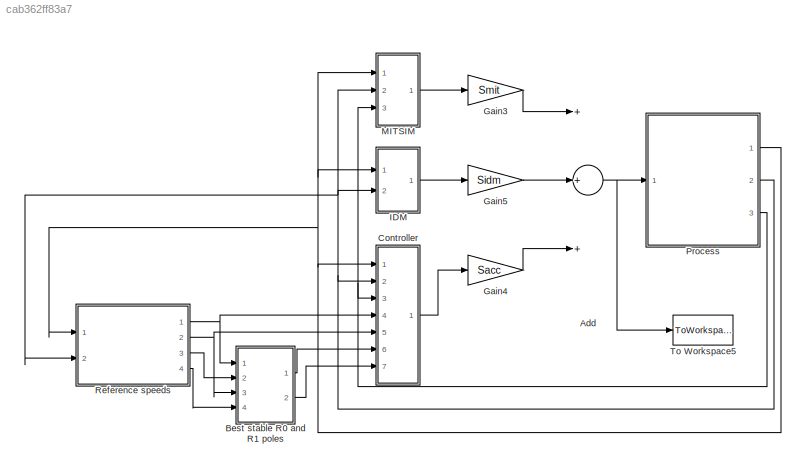
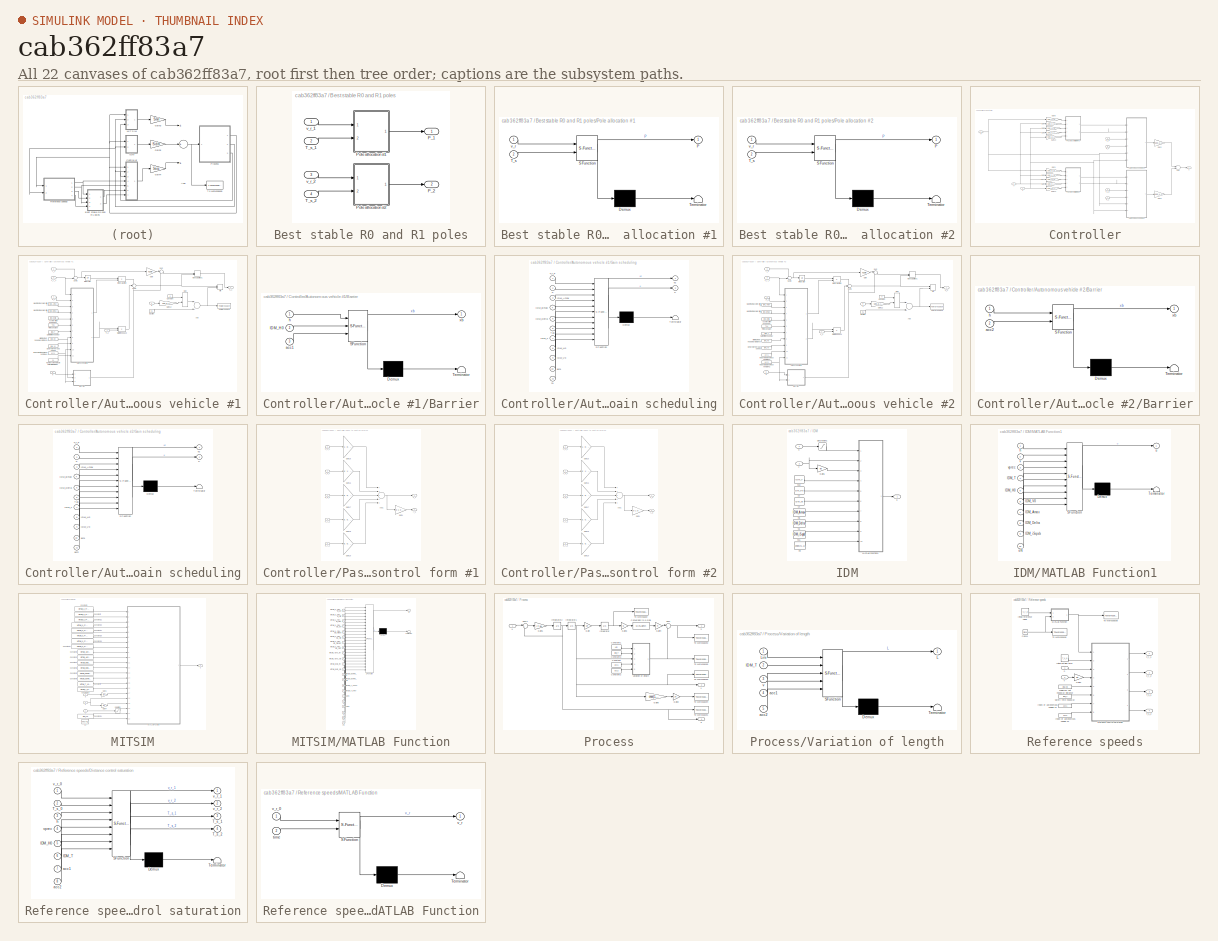
[diagram: thumbnail index - all 22 canvases of the model, root first then tree order]
MODEL slx_cab362ff83a7
KIND model
CONFIG AbsTol = auto
CONFIG EnableMultiTasking = on
CONFIG FixedStep = auto
CONFIG MaxStep = maxstepsize
CONFIG MinStep = auto
CONFIG RelTol = 1e-3
CONFIG SampleTimeConstraint = Unconstrained
CONFIG Solver = VariableStepAuto
CONFIG SolverName = VariableStepAuto
CONFIG StartTime = 0.0
CONFIG StopTime = tfinal
BLOCK [Sum] Add
  InputSameDT = off
  Inputs = +++
  OutDataTypeStr = Inherit: Inherit via internal rule
  Ports = [3, 1]
  SaturateOnIntegerOverflow = off
BLOCK [SubSystem] Best stable R0 and R1 poles
  Ports = [4, 2]
  RequestExecContextInheritance = off
BLOCK [Outport] Best stable R0 and R1 poles/P_1
  IconDisplay = Port number
BLOCK [Outport] Best stable R0 and R1 poles/P_2
  IconDisplay = Port number
  Port = 2
BLOCK [SubSystem] Best stable R0 and R1 poles/Pole allocation #1
  ErrorFcn = Stateflow.Translate.translate
  PermitHierarchicalResolution = ExplicitOnly
  Ports = [2, 1]
  RequestExecContextInheritance = off
  SFBlockType = MATLAB Function
  TreatAsAtomicUnit = on
BLOCK [Demux] Best stable R0 and R1 poles/Pole allocation #1/ Demux 
  Outputs = 1
  Ports = [1, 1]
BLOCK [S-Function] Best stable R0 and R1 poles/Pole allocation #1/ SFunction 
  EnableBusSupport = on
  FunctionName = sf_sfun
  PortCounts = [2 2]
  Ports = [2, 2]
  SFcnIsStateOwnerBlock = off
  SFunctionDeploymentMode = off
  Tag = Stateflow S-Function A_Justo_SCHFV_slx_Track 4
BLOCK [Terminator] Best stable R0 and R1 poles/Pole allocation #1/ Terminator 
BLOCK [Outport] Best stable R0 and R1 poles/Pole allocation #1/P
  IconDisplay = Port number
BLOCK [Inport] Best stable R0 and R1 poles/Pole allocation #1/T_s
  IconDisplay = Port number
  Port = 2
BLOCK [Inport] Best stable R0 and R1 poles/Pole allocation #1/v_r
  IconDisplay = Port number
BLOCK [SubSystem] Best stable R0 and R1 poles/Pole allocation #2
  ErrorFcn = Stateflow.Translate.translate
  PermitHierarchicalResolution = ExplicitOnly
  Ports = [2, 1]
  RequestExecContextInheritance = off
  SFBlockType = MATLAB Function
  TreatAsAtomicUnit = on
BLOCK [Demux] Best stable R0 and R1 poles/Pole allocation #2/ Demux 
  Outputs = 1
  Ports = [1, 1]
BLOCK [S-Function] Best stable R0 and R1 poles/Pole allocation #2/ SFunction 
  EnableBusSupport = on
  FunctionName = sf_sfun
  PortCounts = [2 2]
  Ports = [2, 2]
  SFcnIsStateOwnerBlock = off
  SFunctionDeploymentMode = off
  Tag = Stateflow S-Function A_Justo_SCHFV_slx_Track 8
BLOCK [Terminator] Best stable R0 and R1 poles/Pole allocation #2/ Terminator 
BLOCK [Outport] Best stable R0 and R1 poles/Pole allocation #2/P
  IconDisplay = Port number
BLOCK [Inport] Best stable R0 and R1 poles/Pole allocation #2/T_s
  IconDisplay = Port number
  Port = 2
BLOCK [Inport] Best stable R0 and R1 poles/Pole allocation #2/v_r
  IconDisplay = Port number
BLOCK [Inport] Best stable R0 and R1 poles/T_s_1
  IconDisplay = Port number
  Port = 2
BLOCK [Inport] Best stable R0 and R1 poles/T_s_2
  IconDisplay = Port number
  Port = 4
BLOCK [Inport] Best stable R0 and R1 poles/v_r_1
  IconDisplay = Port number
BLOCK [Inport] Best stable R0 and R1 poles/v_r_2
  IconDisplay = Port number
  Port = 3
BLOCK [SubSystem] Controller
  Ports = [7, 1]
  RequestExecContextInheritance = off
BLOCK [Sum] Controller/Add
  InputSameDT = off
  OutDataTypeStr = Inherit: Inherit via internal rule
  Ports = [2, 1]
  SaturateOnIntegerOverflow = off
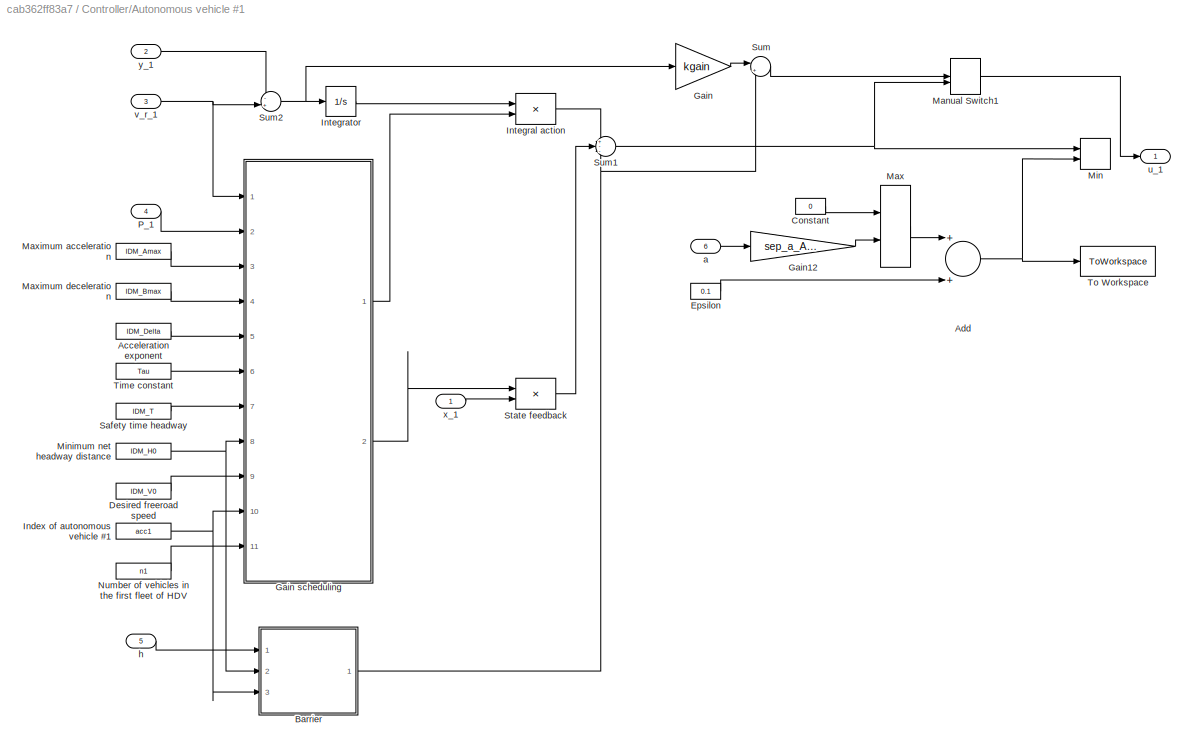
BLOCK [SubSystem] Controller/Autonomous vehicle #1
  Ports = [6, 1]
  RequestExecContextInheritance = off
BLOCK [Constant] Controller/Autonomous vehicle #1/Acceleration exponent
  Value = IDM_Delta
BLOCK [Sum] Controller/Autonomous vehicle #1/Add
  InputSameDT = off
  OutDataTypeStr = Inherit: Inherit via internal rule
  Ports = [2, 1]
  SaturateOnIntegerOverflow = off
BLOCK [SubSystem] Controller/Autonomous vehicle #1/Barrier
  ErrorFcn = Stateflow.Translate.translate
  PermitHierarchicalResolution = ExplicitOnly
  Ports = [3, 1]
  RequestExecContextInheritance = off
  SFBlockType = MATLAB Function
  TreatAsAtomicUnit = on
BLOCK [Demux] Controller/Autonomous vehicle #1/Barrier/ Demux 
  Outputs = 1
  Ports = [1, 1]
BLOCK [S-Function] Controller/Autonomous vehicle #1/Barrier/ SFunction 
  EnableBusSupport = on
  FunctionName = sf_sfun
  PortCounts = [3 2]
  Ports = [3, 2]
  SFcnIsStateOwnerBlock = off
  SFunctionDeploymentMode = off
  Tag = Stateflow S-Function A_Justo_SCHFV_slx_Track 9
BLOCK [Terminator] Controller/Autonomous vehicle #1/Barrier/ Terminator 
BLOCK [Inport] Controller/Autonomous vehicle #1/Barrier/IDM_H0
  IconDisplay = Port number
  Port = 2
BLOCK [Inport] Controller/Autonomous vehicle #1/Barrier/acc1
  IconDisplay = Port number
  Port = 3
BLOCK [Inport] Controller/Autonomous vehicle #1/Barrier/h
  IconDisplay = Port number
BLOCK [Outport] Controller/Autonomous vehicle #1/Barrier/xb
  IconDisplay = Port number
BLOCK [Constant] Controller/Autonomous vehicle #1/Constant
  Value = 0
BLOCK [Constant] Controller/Autonomous vehicle #1/Desired freeroad speed
  Value = IDM_V0
BLOCK [Constant] Controller/Autonomous vehicle #1/Epsilon
  Value = 0.1
BLOCK [Gain] Controller/Autonomous vehicle #1/Gain
  Gain = kgain
  OutDataTypeStr = Inherit: Inherit via internal rule
  ParamDataTypeStr = Inherit: Inherit via internal rule
  SaturateOnIntegerOverflow = off
BLOCK [SubSystem] Controller/Autonomous vehicle #1/Gain scheduling
  ErrorFcn = Stateflow.Translate.translate
  PermitHierarchicalResolution = ExplicitOnly
  Ports = [11, 2]
  RequestExecContextInheritance = off
  SFBlockType = MATLAB Function
  TreatAsAtomicUnit = on
BLOCK [Demux] Controller/Autonomous vehicle #1/Gain scheduling/ Demux 
  Outputs = 1
  Ports = [1, 1]
BLOCK [S-Function] Controller/Autonomous vehicle #1/Gain scheduling/ SFunction 
  EnableBusSupport = on
  FunctionName = sf_sfun
  PortCounts = [11 3]
  Ports = [11, 3]
  SFcnIsStateOwnerBlock = off
  SFunctionDeploymentMode = off
  Tag = Stateflow S-Function A_Justo_SCHFV_slx_Track 11
BLOCK [Terminator] Controller/Autonomous vehicle #1/Gain scheduling/ Terminator 
BLOCK [Inport] Controller/Autonomous vehicle #1/Gain scheduling/IDM_Amax
  IconDisplay = Port number
  Port = 3
BLOCK [Inport] Controller/Autonomous vehicle #1/Gain scheduling/IDM_Bmax
  IconDisplay = Port number
  Port = 4
BLOCK [Inport] Controller/Autonomous vehicle #1/Gain scheduling/IDM_Delta
  IconDisplay = Port number
  Port = 5
BLOCK [Inport] Controller/Autonomous vehicle #1/Gain scheduling/IDM_H0
  IconDisplay = Port number
  Port = 8
BLOCK [Inport] Controller/Autonomous vehicle #1/Gain scheduling/IDM_T
  IconDisplay = Port number
  Port = 7
BLOCK [Inport] Controller/Autonomous vehicle #1/Gain scheduling/IDM_V0
  IconDisplay = Port number
  Port = 9
BLOCK [Outport] Controller/Autonomous vehicle #1/Gain scheduling/K
  IconDisplay = Port number
  Port = 2
BLOCK [Inport] Controller/Autonomous vehicle #1/Gain scheduling/P
  IconDisplay = Port number
  Port = 2
BLOCK [Inport] Controller/Autonomous vehicle #1/Gain scheduling/Tau
  IconDisplay = Port number
  Port = 6
BLOCK [Inport] Controller/Autonomous vehicle #1/Gain scheduling/acc1
  IconDisplay = Port number
  Port = 10
BLOCK [Outport] Controller/Autonomous vehicle #1/Gain scheduling/kz
  IconDisplay = Port number
BLOCK [Inport] Controller/Autonomous vehicle #1/Gain scheduling/n1
  IconDisplay = Port number
  Port = 11
BLOCK [Inport] Controller/Autonomous vehicle #1/Gain scheduling/v_r_0
  IconDisplay = Port number
BLOCK [Gain] Controller/Autonomous vehicle #1/Gain12
  Gain = sep_a_A_2
  Multiplication = Matrix(K*u)
  OutDataTypeStr = Inherit: Inherit via internal rule
  ParamDataTypeStr = Inherit: Inherit via internal rule
  SaturateOnIntegerOverflow = off
BLOCK [Constant] Controller/Autonomous vehicle #1/Index of autonomous vehicle #1
  Value = acc1
BLOCK [Product] Controller/Autonomous vehicle #1/Integral action
  InputSameDT = off
  Multiplication = Matrix(*)
  OutDataTypeStr = Inherit: Inherit via internal rule
  Ports = [2, 1]
  RndMeth = Floor
  SaturateOnIntegerOverflow = off
BLOCK [Integrator] Controller/Autonomous vehicle #1/Integrator
  Ports = [1, 1]
BLOCK [ManualSwitch] Controller/Autonomous vehicle #1/Manual Switch1
BLOCK [MinMax] Controller/Autonomous vehicle #1/Max
  Function = max
  InputSameDT = off
  Inputs = 2
  Ports = [2, 1]
  SaturateOnIntegerOverflow = off
BLOCK [Constant] Controller/Autonomous vehicle #1/Maximum acceleration
  Value = IDM_Amax
BLOCK [Constant] Controller/Autonomous vehicle #1/Maximum deceleration
  Value = IDM_Bmax
BLOCK [MinMax] Controller/Autonomous vehicle #1/Min
  InputSameDT = off
  Inputs = 2
  Ports = [2, 1]
  SaturateOnIntegerOverflow = off
BLOCK [Constant] Controller/Autonomous vehicle #1/Minimum net headway distance
  Value = IDM_H0
BLOCK [Constant] Controller/Autonomous vehicle #1/Number of vehicles in the first fleet of HDV
  Value = n1
BLOCK [Inport] Controller/Autonomous vehicle #1/P_1
  IconDisplay = Port number
  Port = 4
BLOCK [Constant] Controller/Autonomous vehicle #1/Safety time headway
  Value = IDM_T
BLOCK [Product] Controller/Autonomous vehicle #1/State feedback
  InputSameDT = off
  Multiplication = Matrix(*)
  OutDataTypeStr = Inherit: Inherit via internal rule
  Ports = [2, 1]
  RndMeth = Floor
  SaturateOnIntegerOverflow = off
BLOCK [Sum] Controller/Autonomous vehicle #1/Sum
  IconShape = round
  InputSameDT = off
  Inputs = |+-
  OutDataTypeStr = Inherit: Inherit via internal rule
  Ports = [2, 1]
  SaturateOnIntegerOverflow = off
BLOCK [Sum] Controller/Autonomous vehicle #1/Sum1
  IconShape = round
  InputSameDT = off
  Inputs = +--
  OutDataTypeStr = Inherit: Inherit via internal rule
  Ports = [3, 1]
  SaturateOnIntegerOverflow = off
BLOCK [Sum] Controller/Autonomous vehicle #1/Sum2
  IconShape = round
  InputSameDT = off
  Inputs = -+|
  OutDataTypeStr = Inherit: Inherit via internal rule
  Ports = [2, 1]
  SaturateOnIntegerOverflow = off
BLOCK [Constant] Controller/Autonomous vehicle #1/Time constant
  Value = Tau
BLOCK [ToWorkspace] Controller/Autonomous vehicle #1/To Workspace
  FixptAsFi = on
  MaxDataPoints = inf
  Ports = [1]
  SampleTime = -1
  VariableName = sims_amax1
BLOCK [Inport] Controller/Autonomous vehicle #1/a
  IconDisplay = Port number
  Port = 6
BLOCK [Inport] Controller/Autonomous vehicle #1/h
  IconDisplay = Port number
  Port = 5
BLOCK [Outport] Controller/Autonomous vehicle #1/u_1
  IconDisplay = Port number
BLOCK [Inport] Controller/Autonomous vehicle #1/v_r_1
  IconDisplay = Port number
  Port = 3
BLOCK [Inport] Controller/Autonomous vehicle #1/x_1
  IconDisplay = Port number
BLOCK [Inport] Controller/Autonomous vehicle #1/y_1
  IconDisplay = Port number
  Port = 2
BLOCK [SubSystem] Controller/Autonomous vehicle #2
  Ports = [6, 1]
  RequestExecContextInheritance = off
BLOCK [Constant] Controller/Autonomous vehicle #2/Acceleration exponent
  Value = IDM_Delta
BLOCK [Sum] Controller/Autonomous vehicle #2/Add
  InputSameDT = off
  OutDataTypeStr = Inherit: Inherit via internal rule
  Ports = [2, 1]
  SaturateOnIntegerOverflow = off
BLOCK [SubSystem] Controller/Autonomous vehicle #2/Barrier
  ErrorFcn = Stateflow.Translate.translate
  PermitHierarchicalResolution = ExplicitOnly
  Ports = [2, 1]
  RequestExecContextInheritance = off
  SFBlockType = MATLAB Function
  TreatAsAtomicUnit = on
BLOCK [Demux] Controller/Autonomous vehicle #2/Barrier/ Demux 
  Outputs = 1
  Ports = [1, 1]
BLOCK [S-Function] Controller/Autonomous vehicle #2/Barrier/ SFunction 
  EnableBusSupport = on
  FunctionName = sf_sfun
  PortCounts = [2 2]
  Ports = [2, 2]
  SFcnIsStateOwnerBlock = off
  SFunctionDeploymentMode = off
  Tag = Stateflow S-Function A_Justo_SCHFV_slx_Track 10
BLOCK [Terminator] Controller/Autonomous vehicle #2/Barrier/ Terminator 
BLOCK [Inport] Controller/Autonomous vehicle #2/Barrier/acc2
  IconDisplay = Port number
  Port = 2
BLOCK [Inport] Controller/Autonomous vehicle #2/Barrier/h
  IconDisplay = Port number
BLOCK [Outport] Controller/Autonomous vehicle #2/Barrier/xb
  IconDisplay = Port number
BLOCK [Constant] Controller/Autonomous vehicle #2/Constant
  Value = 0
BLOCK [Constant] Controller/Autonomous vehicle #2/Desired freeroad speed
  Value = IDM_V0
BLOCK [Constant] Controller/Autonomous vehicle #2/Epsilon
  Value = 0.1
BLOCK [Gain] Controller/Autonomous vehicle #2/Gain
  Gain = kgain
  OutDataTypeStr = Inherit: Inherit via internal rule
  ParamDataTypeStr = Inherit: Inherit via internal rule
  SaturateOnIntegerOverflow = off
BLOCK [SubSystem] Controller/Autonomous vehicle #2/Gain scheduling
  ErrorFcn = Stateflow.Translate.translate
  PermitHierarchicalResolution = ExplicitOnly
  Ports = [11, 2]
  RequestExecContextInheritance = off
  SFBlockType = MATLAB Function
  TreatAsAtomicUnit = on
BLOCK [Demux] Controller/Autonomous vehicle #2/Gain scheduling/ Demux 
  Outputs = 1
  Ports = [1, 1]
BLOCK [S-Function] Controller/Autonomous vehicle #2/Gain scheduling/ SFunction 
  EnableBusSupport = on
  FunctionName = sf_sfun
  PortCounts = [11 3]
  Ports = [11, 3]
  SFcnIsStateOwnerBlock = off
  SFunctionDeploymentMode = off
  Tag = Stateflow S-Function A_Justo_SCHFV_slx_Track 2
BLOCK [Terminator] Controller/Autonomous vehicle #2/Gain scheduling/ Terminator 
BLOCK [Inport] Controller/Autonomous vehicle #2/Gain scheduling/IDM_Amax
  IconDisplay = Port number
  Port = 3
BLOCK [Inport] Controller/Autonomous vehicle #2/Gain scheduling/IDM_Bmax
  IconDisplay = Port number
  Port = 4
BLOCK [Inport] Controller/Autonomous vehicle #2/Gain scheduling/IDM_Delta
  IconDisplay = Port number
  Port = 5
BLOCK [Inport] Controller/Autonomous vehicle #2/Gain scheduling/IDM_H0
  IconDisplay = Port number
  Port = 8
BLOCK [Inport] Controller/Autonomous vehicle #2/Gain scheduling/IDM_T
  IconDisplay = Port number
  Port = 7
BLOCK [Inport] Controller/Autonomous vehicle #2/Gain scheduling/IDM_V0
  IconDisplay = Port number
  Port = 9
BLOCK [Outport] Controller/Autonomous vehicle #2/Gain scheduling/K
  IconDisplay = Port number
  Port = 2
BLOCK [Inport] Controller/Autonomous vehicle #2/Gain scheduling/P
  IconDisplay = Port number
  Port = 2
BLOCK [Inport] Controller/Autonomous vehicle #2/Gain scheduling/Tau
  IconDisplay = Port number
  Port = 6
BLOCK [Inport] Controller/Autonomous vehicle #2/Gain scheduling/acc1
  IconDisplay = Port number
  Port = 10
BLOCK [Inport] Controller/Autonomous vehicle #2/Gain scheduling/acc2
  IconDisplay = Port number
  Port = 11
BLOCK [Outport] Controller/Autonomous vehicle #2/Gain scheduling/kz
  IconDisplay = Port number
BLOCK [Inport] Controller/Autonomous vehicle #2/Gain scheduling/v_r_0
  IconDisplay = Port number
BLOCK [Gain] Controller/Autonomous vehicle #2/Gain12
  Gain = sep_a_A_1
  Multiplication = Matrix(K*u)
  OutDataTypeStr = Inherit: Inherit via internal rule
  ParamDataTypeStr = Inherit: Inherit via internal rule
  SaturateOnIntegerOverflow = off
BLOCK [Constant] Controller/Autonomous vehicle #2/Index of autonomous vehicle #1
  Value = acc1
BLOCK [Constant] Controller/Autonomous vehicle #2/Index of autonomous vehicle #2
  Value = acc2
BLOCK [Product] Controller/Autonomous vehicle #2/Integral action
  InputSameDT = off
  Multiplication = Matrix(*)
  OutDataTypeStr = Inherit: Inherit via internal rule
  Ports = [2, 1]
  RndMeth = Floor
  SaturateOnIntegerOverflow = off
BLOCK [Integrator] Controller/Autonomous vehicle #2/Integrator
  Ports = [1, 1]
BLOCK [ManualSwitch] Controller/Autonomous vehicle #2/Manual Switch1
BLOCK [MinMax] Controller/Autonomous vehicle #2/Max
  Function = max
  InputSameDT = off
  Inputs = 2
  Ports = [2, 1]
  SaturateOnIntegerOverflow = off
BLOCK [Constant] Controller/Autonomous vehicle #2/Maximum acceleration
  Value = IDM_Amax
BLOCK [Constant] Controller/Autonomous vehicle #2/Maximum deceleration
  Value = IDM_Bmax
BLOCK [MinMax] Controller/Autonomous vehicle #2/Min
  InputSameDT = off
  Inputs = 2
  Ports = [2, 1]
  SaturateOnIntegerOverflow = off
BLOCK [Constant] Controller/Autonomous vehicle #2/Minimum net headway distance
  Value = IDM_H0
BLOCK [Inport] Controller/Autonomous vehicle #2/P_2
  IconDisplay = Port number
  Port = 4
BLOCK [Constant] Controller/Autonomous vehicle #2/Safety time headway
  Value = IDM_T
BLOCK [Product] Controller/Autonomous vehicle #2/State feedback
  InputSameDT = off
  Multiplication = Matrix(*)
  OutDataTypeStr = Inherit: Inherit via internal rule
  Ports = [2, 1]
  RndMeth = Floor
  SaturateOnIntegerOverflow = off
BLOCK [Sum] Controller/Autonomous vehicle #2/Sum
  IconShape = round
  InputSameDT = off
  Inputs = |+-
  OutDataTypeStr = Inherit: Inherit via internal rule
  Ports = [2, 1]
  SaturateOnIntegerOverflow = off
BLOCK [Sum] Controller/Autonomous vehicle #2/Sum1
  IconShape = round
  InputSameDT = off
  Inputs = +--
  OutDataTypeStr = Inherit: Inherit via internal rule
  Ports = [3, 1]
  SaturateOnIntegerOverflow = off
BLOCK [Sum] Controller/Autonomous vehicle #2/Sum2
  IconShape = round
  InputSameDT = off
  Inputs = -+|
  OutDataTypeStr = Inherit: Inherit via internal rule
  Ports = [2, 1]
  SaturateOnIntegerOverflow = off
BLOCK [Constant] Controller/Autonomous vehicle #2/Time constant
  Value = Tau
BLOCK [ToWorkspace] Controller/Autonomous vehicle #2/To Workspace
  FixptAsFi = on
  MaxDataPoints = inf
  Ports = [1]
  SampleTime = -1
  VariableName = sims_amax2
BLOCK [Inport] Controller/Autonomous vehicle #2/a
  IconDisplay = Port number
  Port = 6
BLOCK [Inport] Controller/Autonomous vehicle #2/h
  IconDisplay = Port number
  Port = 5
BLOCK [Outport] Controller/Autonomous vehicle #2/u_2
  IconDisplay = Port number
BLOCK [Inport] Controller/Autonomous vehicle #2/v_r_2
  IconDisplay = Port number
  Port = 3
BLOCK [Inport] Controller/Autonomous vehicle #2/x_2
  IconDisplay = Port number
BLOCK [Inport] Controller/Autonomous vehicle #2/y_2
  IconDisplay = Port number
  Port = 2
BLOCK [Gain] Controller/Gain1
  Gain = sep_h_H_2
  Multiplication = Matrix(K*u)
  OutDataTypeStr = Inherit: Inherit via internal rule
  ParamDataTypeStr = Inherit: Inherit via internal rule
  SaturateOnIntegerOverflow = off
BLOCK [Gain] Controller/Gain10
  Gain = sep_a_A_1
  Multiplication = Matrix(K*u)
  OutDataTypeStr = Inherit: Inherit via internal rule
  ParamDataTypeStr = Inherit: Inherit via internal rule
  SaturateOnIntegerOverflow = off
BLOCK [Gain] Controller/Gain11
  Gain = sep_a_H_2
  Multiplication = Matrix(K*u)
  OutDataTypeStr = Inherit: Inherit via internal rule
  ParamDataTypeStr = Inherit: Inherit via internal rule
  SaturateOnIntegerOverflow = off
BLOCK [Gain] Controller/Gain12
  Gain = sep_a_A_2
  Multiplication = Matrix(K*u)
  OutDataTypeStr = Inherit: Inherit via internal rule
  ParamDataTypeStr = Inherit: Inherit via internal rule
  SaturateOnIntegerOverflow = off
BLOCK [Gain] Controller/Gain2
  Gain = add_u_1
  Multiplication = Matrix(K*u)
  OutDataTypeStr = Inherit: Inherit via internal rule
  ParamDataTypeStr = Inherit: Inherit via internal rule
  SaturateOnIntegerOverflow = off
BLOCK [Gain] Controller/Gain3
  Gain = add_u_2
  Multiplication = Matrix(K*u)
  OutDataTypeStr = Inherit: Inherit via internal rule
  ParamDataTypeStr = Inherit: Inherit via internal rule
  SaturateOnIntegerOverflow = off
BLOCK [Gain] Controller/Gain4
  Gain = sep_v_H_1
  Multiplication = Matrix(K*u)
  OutDataTypeStr = Inherit: Inherit via internal rule
  ParamDataTypeStr = Inherit: Inherit via internal rule
  SaturateOnIntegerOverflow = off
BLOCK [Gain] Controller/Gain5
  Gain = sep_v_A_1
  Multiplication = Matrix(K*u)
  OutDataTypeStr = Inherit: Inherit via internal rule
  ParamDataTypeStr = Inherit: Inherit via internal rule
  SaturateOnIntegerOverflow = off
BLOCK [Gain] Controller/Gain6
  Gain = sep_v_H_2
  Multiplication = Matrix(K*u)
  OutDataTypeStr = Inherit: Inherit via internal rule
  ParamDataTypeStr = Inherit: Inherit via internal rule
  SaturateOnIntegerOverflow = off
BLOCK [Gain] Controller/Gain7
  Gain = sep_v_A_2
  Multiplication = Matrix(K*u)
  OutDataTypeStr = Inherit: Inherit via internal rule
  ParamDataTypeStr = Inherit: Inherit via internal rule
  SaturateOnIntegerOverflow = off
BLOCK [Gain] Controller/Gain8
  Gain = sep_h_H_1
  Multiplication = Matrix(K*u)
  OutDataTypeStr = Inherit: Inherit via internal rule
  ParamDataTypeStr = Inherit: Inherit via internal rule
  SaturateOnIntegerOverflow = off
BLOCK [Gain] Controller/Gain9
  Gain = sep_a_H_1
  Multiplication = Matrix(K*u)
  OutDataTypeStr = Inherit: Inherit via internal rule
  ParamDataTypeStr = Inherit: Inherit via internal rule
  SaturateOnIntegerOverflow = off
BLOCK [Inport] Controller/P_1
  IconDisplay = Port number
  Port = 6
BLOCK [Inport] Controller/P_2
  IconDisplay = Port number
  Port = 7
BLOCK [SubSystem] Controller/Pass to control form #1
  Ports = [5, 2]
  RequestExecContextInheritance = off
BLOCK [Sum] Controller/Pass to control form #1/Add1
  InputSameDT = off
  Inputs = +++++
  OutDataTypeStr = Inherit: Inherit via internal rule
  Ports = [5, 1]
  SaturateOnIntegerOverflow = off
BLOCK [Gain] Controller/Pass to control form #1/Gain1
  Gain = [0 1 0 0 0]
  Multiplication = Matrix(K*u)
  OutDataTypeStr = Inherit: Inherit via internal rule
  ParamDataTypeStr = Inherit: Inherit via internal rule
  SaturateOnIntegerOverflow = off
BLOCK [Gain] Controller/Pass to control form #1/Gain15
  Gain = [1; 0; 0; 0; 0]
  Multiplication = Matrix(K*u)
  OutDataTypeStr = Inherit: Inherit via internal rule
  ParamDataTypeStr = Inherit: Inherit via internal rule
  SaturateOnIntegerOverflow = off
BLOCK [Gain] Controller/Pass to control form #1/Gain16
  Gain = [0; 1; 0; 0; 0]
  Multiplication = Matrix(K*u)
  OutDataTypeStr = Inherit: Inherit via internal rule
  ParamDataTypeStr = Inherit: Inherit via internal rule
  SaturateOnIntegerOverflow = off
BLOCK [Gain] Controller/Pass to control form #1/Gain17
  Gain = [0; 0; 1; 0; 0]
  Multiplication = Matrix(K*u)
  OutDataTypeStr = Inherit: Inherit via internal rule
  ParamDataTypeStr = Inherit: Inherit via internal rule
  SaturateOnIntegerOverflow = off
BLOCK [Gain] Controller/Pass to control form #1/Gain18
  Gain = [0; 0; 0; 1; 0]
  Multiplication = Matrix(K*u)
  OutDataTypeStr = Inherit: Inherit via internal rule
  ParamDataTypeStr = Inherit: Inherit via internal rule
  SaturateOnIntegerOverflow = off
BLOCK [Gain] Controller/Pass to control form #1/Gain19
  Gain = [0; 0; 0; 0; 1]
  Multiplication = Matrix(K*u)
  OutDataTypeStr = Inherit: Inherit via internal rule
  ParamDataTypeStr = Inherit: Inherit via internal rule
  SaturateOnIntegerOverflow = off
BLOCK [Inport] Controller/Pass to control form #1/a_A_1
  IconDisplay = Port number
  Port = 5
BLOCK [Inport] Controller/Pass to control form #1/a_H_1
  IconDisplay = Port number
  Port = 3
BLOCK [Inport] Controller/Pass to control form #1/h_H_1
  IconDisplay = Port number
BLOCK [Inport] Controller/Pass to control form #1/v_A_1
  IconDisplay = Port number
  Port = 4
BLOCK [Inport] Controller/Pass to control form #1/v_H_1
  IconDisplay = Port number
  Port = 2
BLOCK [Outport] Controller/Pass to control form #1/x_1
  IconDisplay = Port number
BLOCK [Outport] Controller/Pass to control form #1/y_1
  IconDisplay = Port number
  Port = 2
BLOCK [SubSystem] Controller/Pass to control form #2
  Ports = [5, 2]
  RequestExecContextInheritance = off
BLOCK [Sum] Controller/Pass to control form #2/Add1
  InputSameDT = off
  Inputs = +++++
  OutDataTypeStr = Inherit: Inherit via internal rule
  Ports = [5, 1]
  SaturateOnIntegerOverflow = off
BLOCK [Gain] Controller/Pass to control form #2/Gain1
  Gain = [0 1 0 0 0]
  Multiplication = Matrix(K*u)
  OutDataTypeStr = Inherit: Inherit via internal rule
  ParamDataTypeStr = Inherit: Inherit via internal rule
  SaturateOnIntegerOverflow = off
BLOCK [Gain] Controller/Pass to control form #2/Gain15
  Gain = [1; 0; 0; 0; 0]
  Multiplication = Matrix(K*u)
  OutDataTypeStr = Inherit: Inherit via internal rule
  ParamDataTypeStr = Inherit: Inherit via internal rule
  SaturateOnIntegerOverflow = off
BLOCK [Gain] Controller/Pass to control form #2/Gain16
  Gain = [0; 1; 0; 0; 0]
  Multiplication = Matrix(K*u)
  OutDataTypeStr = Inherit: Inherit via internal rule
  ParamDataTypeStr = Inherit: Inherit via internal rule
  SaturateOnIntegerOverflow = off
BLOCK [Gain] Controller/Pass to control form #2/Gain17
  Gain = [0; 0; 1; 0; 0]
  Multiplication = Matrix(K*u)
  OutDataTypeStr = Inherit: Inherit via internal rule
  ParamDataTypeStr = Inherit: Inherit via internal rule
  SaturateOnIntegerOverflow = off
BLOCK [Gain] Controller/Pass to control form #2/Gain18
  Gain = [0; 0; 0; 1; 0]
  Multiplication = Matrix(K*u)
  OutDataTypeStr = Inherit: Inherit via internal rule
  ParamDataTypeStr = Inherit: Inherit via internal rule
  SaturateOnIntegerOverflow = off
BLOCK [Gain] Controller/Pass to control form #2/Gain19
  Gain = [0; 0; 0; 0; 1]
  Multiplication = Matrix(K*u)
  OutDataTypeStr = Inherit: Inherit via internal rule
  ParamDataTypeStr = Inherit: Inherit via internal rule
  SaturateOnIntegerOverflow = off
BLOCK [Inport] Controller/Pass to control form #2/a_A_2
  IconDisplay = Port number
  Port = 5
BLOCK [Inport] Controller/Pass to control form #2/a_H_2
  IconDisplay = Port number
  Port = 3
BLOCK [Inport] Controller/Pass to control form #2/h_H_2
  IconDisplay = Port number
BLOCK [Inport] Controller/Pass to control form #2/v_A_2
  IconDisplay = Port number
  Port = 4
BLOCK [Inport] Controller/Pass to control form #2/v_H_2
  IconDisplay = Port number
  Port = 2
BLOCK [Outport] Controller/Pass to control form #2/x_2
  IconDisplay = Port number
BLOCK [Outport] Controller/Pass to control form #2/y_2
  IconDisplay = Port number
  Port = 2
BLOCK [Inport] Controller/a
  IconDisplay = Port number
  Port = 3
BLOCK [Inport] Controller/h
  IconDisplay = Port number
BLOCK [Outport] Controller/u
  IconDisplay = Port number
BLOCK [Inport] Controller/v
  IconDisplay = Port number
  Port = 2
BLOCK [Inport] Controller/v_r_1
  IconDisplay = Port number
  Port = 4
BLOCK [Inport] Controller/v_r_2
  IconDisplay = Port number
  Port = 5
BLOCK [Gain] Gain3
  Gain = Smit
  Multiplication = Matrix(K*u)
  OutDataTypeStr = Inherit: Inherit via internal rule
  ParamDataTypeStr = Inherit: Inherit via internal rule
  SaturateOnIntegerOverflow = off
BLOCK [Gain] Gain4
  Gain = Sacc
  Multiplication = Matrix(K*u)
  OutDataTypeStr = Inherit: Inherit via internal rule
  ParamDataTypeStr = Inherit: Inherit via internal rule
  SaturateOnIntegerOverflow = off
BLOCK [Gain] Gain5
  Gain = Sidm
  Multiplication = Matrix(K*u)
  OutDataTypeStr = Inherit: Inherit via internal rule
  ParamDataTypeStr = Inherit: Inherit via internal rule
  SaturateOnIntegerOverflow = off
BLOCK [SubSystem] IDM
  Ports = [2, 1]
  RequestExecContextInheritance = off
BLOCK [Gain] IDM/Gain1
  Gain = Bv
  Multiplication = Matrix(K*u)
  OutDataTypeStr = Inherit: Inherit via internal rule
  ParamDataTypeStr = Inherit: Inherit via internal rule
  SaturateOnIntegerOverflow = off
BLOCK [SubSystem] IDM/MATLAB Function1
  ErrorFcn = Stateflow.Translate.translate
  PermitHierarchicalResolution = ExplicitOnly
  Ports = [10, 1]
  RequestExecContextInheritance = off
  SFBlockType = MATLAB Function
  TreatAsAtomicUnit = on
BLOCK [Demux] IDM/MATLAB Function1/ Demux 
  Outputs = 1
  Ports = [1, 1]
BLOCK [S-Function] IDM/MATLAB Function1/ SFunction 
  EnableBusSupport = on
  FunctionName = sf_sfun
  PortCounts = [10 2]
  Ports = [10, 2]
  SFcnIsStateOwnerBlock = off
  SFunctionDeploymentMode = off
  Tag = Stateflow S-Function A_Justo_SCHFV_slx_Track 6
BLOCK [Terminator] IDM/MATLAB Function1/ Terminator 
BLOCK [Inport] IDM/MATLAB Function1/IDM_Amax
  IconDisplay = Port number
  Port = 7
BLOCK [Inport] IDM/MATLAB Function1/IDM_Delta
  IconDisplay = Port number
  Port = 8
BLOCK [Inport] IDM/MATLAB Function1/IDM_H0
  IconDisplay = Port number
  Port = 5
BLOCK [Inport] IDM/MATLAB Function1/IDM_T
  IconDisplay = Port number
  Port = 4
BLOCK [Inport] IDM/MATLAB Function1/IDM_V0
  IconDisplay = Port number
  Port = 6
BLOCK [Inport] IDM/MATLAB Function1/IDM_iSqab
  IconDisplay = Port number
  Port = 9
BLOCK [Inport] IDM/MATLAB Function1/h
  IconDisplay = Port number
BLOCK [Inport] IDM/MATLAB Function1/oN
  IconDisplay = Port number
  Port = 10
BLOCK [Outport] IDM/MATLAB Function1/u
  IconDisplay = Port number
BLOCK [Inport] IDM/MATLAB Function1/v
  IconDisplay = Port number
  Port = 2
BLOCK [Inport] IDM/MATLAB Function1/vprec
  IconDisplay = Port number
  Port = 3
BLOCK [Saturate] IDM/Saturation1
  InputPortMap = u0
  LowerLimit = 0.1
  Ports = [1, 1]
  UpperLimit = inf
BLOCK [Inport] IDM/h
  IconDisplay = Port number
BLOCK [Constant] IDM/h10
  Value = IDM_T
BLOCK [Constant] IDM/h11
  Value = IDM_iSqab
BLOCK [Constant] IDM/h7
  Value = IDM_H0
BLOCK [Constant] IDM/h8
  Value = IDM_Amax
BLOCK [Constant] IDM/h9
  Value = ones(N,1)
BLOCK [Outport] IDM/u
  IconDisplay = Port number
BLOCK [Inport] IDM/v
  IconDisplay = Port number
  Port = 2
BLOCK [Constant] IDM/v4
  Value = IDM_V0
BLOCK [Constant] IDM/v5
  Value = IDM_Delta
BLOCK [SubSystem] MITSIM
  Ports = [3, 1]
  RequestExecContextInheritance = off
BLOCK [Constant] MITSIM/Constant1
  Value = MITSIM_a_Free_thr_low
BLOCK [Constant] MITSIM/Constant10
  Value = MITSIM_T_lower
BLOCK [Constant] MITSIM/Constant11
  Value = IDM_V0
BLOCK [Constant] MITSIM/Constant12
  Value = MITSIM_a_Free_thr_high
BLOCK [Constant] MITSIM/Constant13
  Value = MITSIM_a_Free_bra_low
BLOCK [Constant] MITSIM/Constant14
  Value = MITSIM_a_Free_bra_midlow
BLOCK [Constant] MITSIM/Constant15
  Value = MITSIM_a_Free_bra_mid
BLOCK [Constant] MITSIM/Constant16
  Value = MITSIM_a_Free_bra_midhigh
BLOCK [Constant] MITSIM/Constant17
  Value = MITSIM_a_Free_bra_high
BLOCK [Constant] MITSIM/Constant2
  Value = MITSIM_a_Free_thr_mid
BLOCK [Constant] MITSIM/Constant3
  Value = MITSIM_Alpha_thr
BLOCK [Constant] MITSIM/Constant4
  Value = MITSIM_Alpha_bra
BLOCK [Constant] MITSIM/Constant5
  Value = MITSIM_Beta_bra
BLOCK [Constant] MITSIM/Constant6
  Value = MITSIM_Gamma_thr
BLOCK [Constant] MITSIM/Constant7
  Value = MITSIM_Beta_thr
BLOCK [Constant] MITSIM/Constant8
  Value = MITSIM_Gamma_bra
BLOCK [Constant] MITSIM/Constant9
  Value = MITSIM_T_upper
BLOCK [Gain] MITSIM/Gain1
  Gain = Bv
  Multiplication = Matrix(K*u)
  OutDataTypeStr = Inherit: Inherit via internal rule
  ParamDataTypeStr = Inherit: Inherit via internal rule
  SaturateOnIntegerOverflow = off
BLOCK [Gain] MITSIM/Gain4
  Gain = Bv
  Multiplication = Matrix(K*u)
  OutDataTypeStr = Inherit: Inherit via internal rule
  ParamDataTypeStr = Inherit: Inherit via internal rule
  SaturateOnIntegerOverflow = off
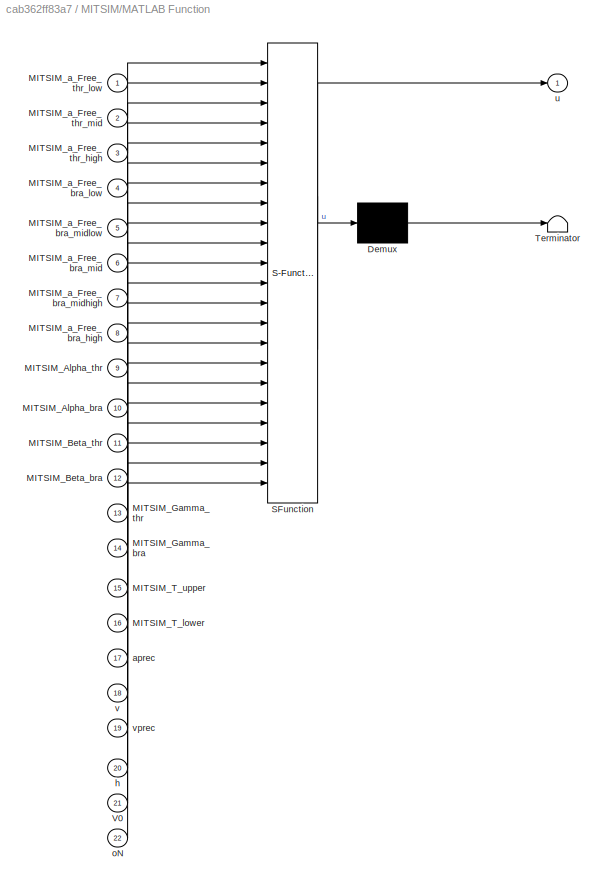
BLOCK [SubSystem] MITSIM/MATLAB Function
  ErrorFcn = Stateflow.Translate.translate
  PermitHierarchicalResolution = ExplicitOnly
  Ports = [22, 1]
  RequestExecContextInheritance = off
  SFBlockType = MATLAB Function
  TreatAsAtomicUnit = on
BLOCK [Demux] MITSIM/MATLAB Function/ Demux 
  Outputs = 1
  Ports = [1, 1]
BLOCK [S-Function] MITSIM/MATLAB Function/ SFunction 
  EnableBusSupport = on
  FunctionName = sf_sfun
  PortCounts = [22 2]
  Ports = [22, 2]
  SFcnIsStateOwnerBlock = off
  SFunctionDeploymentMode = off
  Tag = Stateflow S-Function A_Justo_SCHFV_slx_Track 5
BLOCK [Terminator] MITSIM/MATLAB Function/ Terminator 
BLOCK [Inport] MITSIM/MATLAB Function/MITSIM_Alpha_bra
  IconDisplay = Port number
  Port = 10
BLOCK [Inport] MITSIM/MATLAB Function/MITSIM_Alpha_thr
  IconDisplay = Port number
  Port = 9
BLOCK [Inport] MITSIM/MATLAB Function/MITSIM_Beta_bra
  IconDisplay = Port number
  Port = 12
BLOCK [Inport] MITSIM/MATLAB Function/MITSIM_Beta_thr
  IconDisplay = Port number
  Port = 11
BLOCK [Inport] MITSIM/MATLAB Function/MITSIM_Gamma_bra
  IconDisplay = Port number
  Port = 14
BLOCK [Inport] MITSIM/MATLAB Function/MITSIM_Gamma_thr
  IconDisplay = Port number
  Port = 13
BLOCK [Inport] MITSIM/MATLAB Function/MITSIM_T_lower
  IconDisplay = Port number
  Port = 16
BLOCK [Inport] MITSIM/MATLAB Function/MITSIM_T_upper
  IconDisplay = Port number
  Port = 15
BLOCK [Inport] MITSIM/MATLAB Function/MITSIM_a_Free_bra_high
  IconDisplay = Port number
  Port = 8
BLOCK [Inport] MITSIM/MATLAB Function/MITSIM_a_Free_bra_low
  IconDisplay = Port number
  Port = 4
BLOCK [Inport] MITSIM/MATLAB Function/MITSIM_a_Free_bra_mid
  IconDisplay = Port number
  Port = 6
BLOCK [Inport] MITSIM/MATLAB Function/MITSIM_a_Free_bra_midhigh
  IconDisplay = Port number
  Port = 7
BLOCK [Inport] MITSIM/MATLAB Function/MITSIM_a_Free_bra_midlow
  IconDisplay = Port number
  Port = 5
BLOCK [Inport] MITSIM/MATLAB Function/MITSIM_a_Free_thr_high
  IconDisplay = Port number
  Port = 3
BLOCK [Inport] MITSIM/MATLAB Function/MITSIM_a_Free_thr_low
  IconDisplay = Port number
BLOCK [Inport] MITSIM/MATLAB Function/MITSIM_a_Free_thr_mid
  IconDisplay = Port number
  Port = 2
BLOCK [Inport] MITSIM/MATLAB Function/V0
  IconDisplay = Port number
  Port = 21
BLOCK [Inport] MITSIM/MATLAB Function/aprec
  IconDisplay = Port number
  Port = 17
BLOCK [Inport] MITSIM/MATLAB Function/h
  IconDisplay = Port number
  Port = 20
BLOCK [Inport] MITSIM/MATLAB Function/oN
  IconDisplay = Port number
  Port = 22
BLOCK [Outport] MITSIM/MATLAB Function/u
  IconDisplay = Port number
BLOCK [Inport] MITSIM/MATLAB Function/v
  IconDisplay = Port number
  Port = 18
BLOCK [Inport] MITSIM/MATLAB Function/vprec
  IconDisplay = Port number
  Port = 19
BLOCK [Saturate] MITSIM/Saturation
  InputPortMap = u0
  LowerLimit = 0.1
  Ports = [1, 1]
  UpperLimit = inf
BLOCK [Inport] MITSIM/a
  IconDisplay = Port number
  Port = 3
BLOCK [Inport] MITSIM/h
  IconDisplay = Port number
BLOCK [Constant] MITSIM/h3
  Value = ones(N,1)
BLOCK [Outport] MITSIM/u
  IconDisplay = Port number
BLOCK [Inport] MITSIM/v
  IconDisplay = Port number
  Port = 2
BLOCK [SubSystem] Process
  Ports = [1, 3]
  RequestExecContextInheritance = off
BLOCK [Constant] Process/Constant
  Value = acc1
BLOCK [Constant] Process/Constant1
  Value = Lini
BLOCK [Constant] Process/Constant2
  Value = acc2
BLOCK [Constant] Process/Constant3
  Value = IDM_T
BLOCK [MATLABFcn] Process/Conversion to 0-2*pi1
  MATLABFcn = wrapTo2Pi(u)
  Ports = [1, 1]
BLOCK [Gain] Process/Gain
  Gain = 1/R
  OutDataTypeStr = Inherit: Inherit via internal rule
  ParamDataTypeStr = Inherit: Inherit via internal rule
  SaturateOnIntegerOverflow = off
BLOCK [Gain] Process/Gain1
  Gain = iTau
  Multiplication = Matrix(K*u)
  OutDataTypeStr = Inherit: Inherit via internal rule
  ParamDataTypeStr = Inherit: Inherit via internal rule
  SaturateOnIntegerOverflow = off
BLOCK [Gain] Process/Gain2
  Gain = 1/N
  OutDataTypeStr = Inherit: Inherit via internal rule
  ParamDataTypeStr = Inherit: Inherit via internal rule
  SaturateOnIntegerOverflow = off
BLOCK [Gain] Process/Gain3
  Gain = B
  Multiplication = Matrix(K*u)
  OutDataTypeStr = Inherit: Inherit via internal rule
  ParamDataTypeStr = Inherit: Inherit via internal rule
  SaturateOnIntegerOverflow = off
BLOCK [Gain] Process/Gain4
  Gain = R
  OutDataTypeStr = Inherit: Inherit via internal rule
  ParamDataTypeStr = Inherit: Inherit via internal rule
  SaturateOnIntegerOverflow = off
BLOCK [Gain] Process/Gain5
  Gain = ones(1,N)
  Multiplication = Matrix(K*u)
  OutDataTypeStr = Inherit: Inherit via internal rule
  ParamDataTypeStr = Inherit: Inherit via internal rule
  SaturateOnIntegerOverflow = off
BLOCK [Integrator] Process/Integrator
  InitialCondition = thini
  Ports = [1, 1]
  WrapState = on
  WrappedStateLowerValue = 0
  WrappedStateUpperValue = 2*pi
BLOCK [Integrator] Process/Integrator1
  InitialCondition = vini
  LimitOutput = on
  LowerSaturationLimit = 0
  Ports = [1, 1]
  UpperSaturationLimit = +inf
  WrappedStateLowerValue = 0
  WrappedStateUpperValue = 2*pi
BLOCK [Integrator] Process/Integrator2
  InitialCondition = aini
  Ports = [1, 1]
  UpperSaturationLimit = 1
  WrappedStateLowerValue = 0
  WrappedStateUpperValue = 2*pi
BLOCK [Sum] Process/Sum
  IconShape = round
  InputSameDT = off
  Inputs = |+-
  OutDataTypeStr = Inherit: Inherit via internal rule
  Ports = [2, 1]
  SaturateOnIntegerOverflow = off
BLOCK [Sum] Process/Sum1
  IconShape = round
  InputSameDT = off
  Inputs = |+-
  OutDataTypeStr = Inherit: Inherit via internal rule
  Ports = [2, 1]
  SaturateOnIntegerOverflow = off
BLOCK [ToWorkspace] Process/To Workspace
  FixptAsFi = on
  MaxDataPoints = inf
  Ports = [1]
  SampleTime = -1
  VariableName = sims_th
BLOCK [ToWorkspace] Process/To Workspace1
  FixptAsFi = on
  MaxDataPoints = inf
  Ports = [1]
  SampleTime = -1
  VariableName = sims_a
BLOCK [ToWorkspace] Process/To Workspace2
  FixptAsFi = on
  MaxDataPoints = inf
  Ports = [1]
  SampleTime = -1
  VariableName = sims_h
BLOCK [ToWorkspace] Process/To Workspace3
  FixptAsFi = on
  MaxDataPoints = inf
  Ports = [1]
  SampleTime = -1
  VariableName = sims_v
BLOCK [ToWorkspace] Process/To Workspace4
  FixptAsFi = on
  MaxDataPoints = inf
  Ports = [1]
  SampleTime = -1
  VariableName = sims_vav
BLOCK [ToWorkspace] Process/To Workspace5
  FixptAsFi = on
  MaxDataPoints = inf
  Ports = [1]
  SampleTime = -1
  VariableName = sims_L
BLOCK [SubSystem] Process/Variation of length
  ErrorFcn = Stateflow.Translate.translate
  PermitHierarchicalResolution = ExplicitOnly
  Ports = [5, 1]
  RequestExecContextInheritance = off
  SFBlockType = MATLAB Function
  TreatAsAtomicUnit = on
BLOCK [Demux] Process/Variation of length/ Demux 
  Outputs = 1
  Ports = [1, 1]
BLOCK [S-Function] Process/Variation of length/ SFunction 
  EnableBusSupport = on
  FunctionName = sf_sfun
  PortCounts = [5 2]
  Ports = [5, 2]
  SFcnIsStateOwnerBlock = off
  SFunctionDeploymentMode = off
  Tag = Stateflow S-Function A_Justo_SCHFV_slx_Track 3
BLOCK [Terminator] Process/Variation of length/ Terminator 
BLOCK [Inport] Process/Variation of length/IDM_T
  IconDisplay = Port number
  Port = 2
BLOCK [Outport] Process/Variation of length/L
  IconDisplay = Port number
BLOCK [Inport] Process/Variation of length/Lini
  IconDisplay = Port number
BLOCK [Inport] Process/Variation of length/acc1
  IconDisplay = Port number
  Port = 4
BLOCK [Inport] Process/Variation of length/acc2
  IconDisplay = Port number
  Port = 5
BLOCK [Inport] Process/Variation of length/v
  IconDisplay = Port number
  Port = 3
BLOCK [Outport] Process/a
  IconDisplay = Port number
  Port = 3
BLOCK [Outport] Process/h
  IconDisplay = Port number
BLOCK [Inport] Process/u
  IconDisplay = Port number
BLOCK [Outport] Process/v
  IconDisplay = Port number
  Port = 2
BLOCK [SubSystem] Reference speeds
  Ports = [2, 4]
  RequestExecContextInheritance = off
BLOCK [Clock] Reference speeds/Clock1
BLOCK [SubSystem] Reference speeds/Distance control saturation
  ErrorFcn = Stateflow.Translate.translate
  PermitHierarchicalResolution = ExplicitOnly
  Ports = [8, 4]
  RequestExecContextInheritance = off
  SFBlockType = MATLAB Function
  TreatAsAtomicUnit = on
BLOCK [Demux] Reference speeds/Distance control saturation/ Demux 
  Outputs = 1
  Ports = [1, 1]
BLOCK [S-Function] Reference speeds/Distance control saturation/ SFunction 
  EnableBusSupport = on
  FunctionName = sf_sfun
  PortCounts = [8 5]
  Ports = [8, 5]
  SFcnIsStateOwnerBlock = off
  SFunctionDeploymentMode = off
  Tag = Stateflow S-Function A_Justo_SCHFV_slx_Track 7
BLOCK [Terminator] Reference speeds/Distance control saturation/ Terminator 
BLOCK [Inport] Reference speeds/Distance control saturation/IDM_H0
  IconDisplay = Port number
  Port = 5
BLOCK [Inport] Reference speeds/Distance control saturation/IDM_T
  IconDisplay = Port number
  Port = 6
BLOCK [Inport] Reference speeds/Distance control saturation/T_s_0
  IconDisplay = Port number
  Port = 2
BLOCK [Outport] Reference speeds/Distance control saturation/T_s_1
  IconDisplay = Port number
  Port = 3
BLOCK [Outport] Reference speeds/Distance control saturation/T_s_2
  IconDisplay = Port number
  Port = 4
BLOCK [Inport] Reference speeds/Distance control saturation/acc1
  IconDisplay = Port number
  Port = 7
BLOCK [Inport] Reference speeds/Distance control saturation/acc2
  IconDisplay = Port number
  Port = 8
BLOCK [Inport] Reference speeds/Distance control saturation/h
  IconDisplay = Port number
  Port = 3
BLOCK [Inport] Reference speeds/Distance control saturation/v_r_0
  IconDisplay = Port number
BLOCK [Outport] Reference speeds/Distance control saturation/v_r_1
  IconDisplay = Port number
BLOCK [Outport] Reference speeds/Distance control saturation/v_r_2
  IconDisplay = Port number
  Port = 2
BLOCK [Inport] Reference speeds/Distance control saturation/vprec
  IconDisplay = Port number
  Port = 4
BLOCK [Gain] Reference speeds/Gain1
  Gain = Bv
  Multiplication = Matrix(K*u)
  OutDataTypeStr = Inherit: Inherit via internal rule
  ParamDataTypeStr = Inherit: Inherit via internal rule
  SaturateOnIntegerOverflow = off
BLOCK [Constant] Reference speeds/Index of autonomous vehicle #1
  Value = acc1
BLOCK [Constant] Reference speeds/Index of autonomous vehicle #2
  Value = acc2
BLOCK [Constant] Reference speeds/Initial reference value
  Value = v_r_0
BLOCK [Constant] Reference speeds/Initial settling time
  Value = T_s_0
BLOCK [SubSystem] Reference speeds/MATLAB Function
  ErrorFcn = Stateflow.Translate.translate
  PermitHierarchicalResolution = ExplicitOnly
  Ports = [2, 1]
  RequestExecContextInheritance = off
  SFBlockType = MATLAB Function
  TreatAsAtomicUnit = on
BLOCK [Demux] Reference speeds/MATLAB Function/ Demux 
  Outputs = 1
  Ports = [1, 1]
BLOCK [S-Function] Reference speeds/MATLAB Function/ SFunction 
  EnableBusSupport = on
  FunctionName = sf_sfun
  PortCounts = [2 2]
  Ports = [2, 2]
  SFcnIsStateOwnerBlock = off
  SFunctionDeploymentMode = off
  Tag = Stateflow S-Function A_Justo_SCHFV_slx_Track 1
BLOCK [Terminator] Reference speeds/MATLAB Function/ Terminator 
BLOCK [Inport] Reference speeds/MATLAB Function/time
  IconDisplay = Port number
  Port = 2
BLOCK [Outport] Reference speeds/MATLAB Function/v_r
  IconDisplay = Port number
BLOCK [Inport] Reference speeds/MATLAB Function/v_r_0
  IconDisplay = Port number
BLOCK [Constant] Reference speeds/Minimum net headway distance
  Value = IDM_H0
BLOCK [Constant] Reference speeds/Safety time headway
  Value = IDM_T
BLOCK [Outport] Reference speeds/T_s_1
  IconDisplay = Port number
  Port = 3
BLOCK [Outport] Reference speeds/T_s_2
  IconDisplay = Port number
  Port = 4
BLOCK [ToWorkspace] Reference speeds/To Workspace6
  FixptAsFi = on
  MaxDataPoints = inf
  Ports = [1]
  SampleTime = -1
  VariableName = time
BLOCK [ToWorkspace] Reference speeds/To Workspace8
  FixptAsFi = on
  MaxDataPoints = inf
  Ports = [1]
  SampleTime = -1
  VariableName = sims_v_r
BLOCK [Inport] Reference speeds/h
  IconDisplay = Port number
BLOCK [Inport] Reference speeds/v
  IconDisplay = Port number
  Port = 2
BLOCK [Outport] Reference speeds/v_r_1
  IconDisplay = Port number
BLOCK [Outport] Reference speeds/v_r_2
  IconDisplay = Port number
  Port = 2
BLOCK [ToWorkspace] To Workspace5
  FixptAsFi = on
  MaxDataPoints = inf
  Ports = [1]
  SampleTime = -1
  VariableName = sims_u
NET Add:1 -> Process:1, To Workspace5:1
LINE Best stable R0 and R1 poles/Pole allocation #1:1 -> Best stable R0 and R1 poles/P_1:1
LINE Best stable R0 and R1 poles/Pole allocation #2:1 -> Best stable R0 and R1 poles/P_2:1
LINE Best stable R0 and R1 poles/T_s_1:1 -> Best stable R0 and R1 poles/Pole allocation #1:2
LINE Best stable R0 and R1 poles/T_s_2:1 -> Best stable R0 and R1 poles/Pole allocation #2:2
LINE Best stable R0 and R1 poles/v_r_1:1 -> Best stable R0 and R1 poles/Pole allocation #1:1
LINE Best stable R0 and R1 poles/v_r_2:1 -> Best stable R0 and R1 poles/Pole allocation #2:1
LINE Best stable R0 and R1 poles:1 -> Controller:6
LINE Best stable R0 and R1 poles:2 -> Controller:7
LINE Controller/Add:1 -> Controller/u:1
LINE Controller/Autonomous vehicle #1/Acceleration exponent:1 -> Controller/Autonomous vehicle #1/Gain scheduling:5
NET Controller/Autonomous vehicle #1/Add:1 -> Controller/Autonomous vehicle #1/Min:2, Controller/Autonomous vehicle #1/To Workspace:1
NET Controller/Autonomous vehicle #1/Barrier:1 -> Controller/Autonomous vehicle #1/Sum1:3, Controller/Autonomous vehicle #1/Sum:2
LINE Controller/Autonomous vehicle #1/Constant:1 -> Controller/Autonomous vehicle #1/Max:1
LINE Controller/Autonomous vehicle #1/Desired freeroad speed:1 -> Controller/Autonomous vehicle #1/Gain scheduling:9
LINE Controller/Autonomous vehicle #1/Epsilon:1 -> Controller/Autonomous vehicle #1/Add:2
LINE Controller/Autonomous vehicle #1/Gain scheduling:1 -> Controller/Autonomous vehicle #1/Integral action:2
LINE Controller/Autonomous vehicle #1/Gain scheduling:2 -> Controller/Autonomous vehicle #1/State feedback:1
LINE Controller/Autonomous vehicle #1/Gain12:1 -> Controller/Autonomous vehicle #1/Max:2
LINE Controller/Autonomous vehicle #1/Gain:1 -> Controller/Autonomous vehicle #1/Sum:1
NET Controller/Autonomous vehicle #1/Index of autonomous vehicle #1:1 -> Controller/Autonomous vehicle #1/Barrier:3, Controller/Autonomous vehicle #1/Gain scheduling:10
LINE Controller/Autonomous vehicle #1/Integral action:1 -> Controller/Autonomous vehicle #1/Sum1:1
LINE Controller/Autonomous vehicle #1/Integrator:1 -> Controller/Autonomous vehicle #1/Integral action:1
LINE Controller/Autonomous vehicle #1/Manual Switch1:1 -> Controller/Autonomous vehicle #1/u_1:1
LINE Controller/Autonomous vehicle #1/Max:1 -> Controller/Autonomous vehicle #1/Add:1
LINE Controller/Autonomous vehicle #1/Maximum acceleration:1 -> Controller/Autonomous vehicle #1/Gain scheduling:3
LINE Controller/Autonomous vehicle #1/Maximum deceleration:1 -> Controller/Autonomous vehicle #1/Gain scheduling:4
NET Controller/Autonomous vehicle #1/Minimum net headway distance:1 -> Controller/Autonomous vehicle #1/Barrier:2, Controller/Autonomous vehicle #1/Gain scheduling:8
LINE Controller/Autonomous vehicle #1/Number of vehicles in the first fleet of HDV:1 -> Controller/Autonomous vehicle #1/Gain scheduling:11
LINE Controller/Autonomous vehicle #1/P_1:1 -> Controller/Autonomous vehicle #1/Gain scheduling:2
LINE Controller/Autonomous vehicle #1/Safety time headway:1 -> Controller/Autonomous vehicle #1/Gain scheduling:7
LINE Controller/Autonomous vehicle #1/State feedback:1 -> Controller/Autonomous vehicle #1/Sum1:2
NET Controller/Autonomous vehicle #1/Sum1:1 -> Controller/Autonomous vehicle #1/Manual Switch1:2, Controller/Autonomous vehicle #1/Min:1
NET Controller/Autonomous vehicle #1/Sum2:1 -> Controller/Autonomous vehicle #1/Gain:1, Controller/Autonomous vehicle #1/Integrator:1
LINE Controller/Autonomous vehicle #1/Sum:1 -> Controller/Autonomous vehicle #1/Manual Switch1:1
LINE Controller/Autonomous vehicle #1/Time constant:1 -> Controller/Autonomous vehicle #1/Gain scheduling:6
LINE Controller/Autonomous vehicle #1/a:1 -> Controller/Autonomous vehicle #1/Gain12:1
LINE Controller/Autonomous vehicle #1/h:1 -> Controller/Autonomous vehicle #1/Barrier:1
NET Controller/Autonomous vehicle #1/v_r_1:1 -> Controller/Autonomous vehicle #1/Gain scheduling:1, Controller/Autonomous vehicle #1/Sum2:2
LINE Controller/Autonomous vehicle #1/x_1:1 -> Controller/Autonomous vehicle #1/State feedback:2
LINE Controller/Autonomous vehicle #1/y_1:1 -> Controller/Autonomous vehicle #1/Sum2:1
LINE Controller/Autonomous vehicle #1:1 -> Controller/Gain2:1
LINE Controller/Autonomous vehicle #2/Acceleration exponent:1 -> Controller/Autonomous vehicle #2/Gain scheduling:5
NET Controller/Autonomous vehicle #2/Add:1 -> Controller/Autonomous vehicle #2/Min:2, Controller/Autonomous vehicle #2/To Workspace:1
NET Controller/Autonomous vehicle #2/Barrier:1 -> Controller/Autonomous vehicle #2/Sum1:3, Controller/Autonomous vehicle #2/Sum:2
LINE Controller/Autonomous vehicle #2/Constant:1 -> Controller/Autonomous vehicle #2/Max:1
LINE Controller/Autonomous vehicle #2/Desired freeroad speed:1 -> Controller/Autonomous vehicle #2/Gain scheduling:9
LINE Controller/Autonomous vehicle #2/Epsilon:1 -> Controller/Autonomous vehicle #2/Add:2
LINE Controller/Autonomous vehicle #2/Gain scheduling:1 -> Controller/Autonomous vehicle #2/Integral action:2
LINE Controller/Autonomous vehicle #2/Gain scheduling:2 -> Controller/Autonomous vehicle #2/State feedback:1
LINE Controller/Autonomous vehicle #2/Gain12:1 -> Controller/Autonomous vehicle #2/Max:2
LINE Controller/Autonomous vehicle #2/Gain:1 -> Controller/Autonomous vehicle #2/Sum:1
LINE Controller/Autonomous vehicle #2/Index of autonomous vehicle #1:1 -> Controller/Autonomous vehicle #2/Gain scheduling:10
NET Controller/Autonomous vehicle #2/Index of autonomous vehicle #2:1 -> Controller/Autonomous vehicle #2/Barrier:2, Controller/Autonomous vehicle #2/Gain scheduling:11
LINE Controller/Autonomous vehicle #2/Integral action:1 -> Controller/Autonomous vehicle #2/Sum1:1
LINE Controller/Autonomous vehicle #2/Integrator:1 -> Controller/Autonomous vehicle #2/Integral action:1
LINE Controller/Autonomous vehicle #2/Manual Switch1:1 -> Controller/Autonomous vehicle #2/u_2:1
LINE Controller/Autonomous vehicle #2/Max:1 -> Controller/Autonomous vehicle #2/Add:1
LINE Controller/Autonomous vehicle #2/Maximum acceleration:1 -> Controller/Autonomous vehicle #2/Gain scheduling:3
LINE Controller/Autonomous vehicle #2/Maximum deceleration:1 -> Controller/Autonomous vehicle #2/Gain scheduling:4
LINE Controller/Autonomous vehicle #2/Minimum net headway distance:1 -> Controller/Autonomous vehicle #2/Gain scheduling:8
LINE Controller/Autonomous vehicle #2/P_2:1 -> Controller/Autonomous vehicle #2/Gain scheduling:2
LINE Controller/Autonomous vehicle #2/Safety time headway:1 -> Controller/Autonomous vehicle #2/Gain scheduling:7
LINE Controller/Autonomous vehicle #2/State feedback:1 -> Controller/Autonomous vehicle #2/Sum1:2
NET Controller/Autonomous vehicle #2/Sum1:1 -> Controller/Autonomous vehicle #2/Manual Switch1:2, Controller/Autonomous vehicle #2/Min:1
NET Controller/Autonomous vehicle #2/Sum2:1 -> Controller/Autonomous vehicle #2/Gain:1, Controller/Autonomous vehicle #2/Integrator:1
LINE Controller/Autonomous vehicle #2/Sum:1 -> Controller/Autonomous vehicle #2/Manual Switch1:1
LINE Controller/Autonomous vehicle #2/Time constant:1 -> Controller/Autonomous vehicle #2/Gain scheduling:6
LINE Controller/Autonomous vehicle #2/a:1 -> Controller/Autonomous vehicle #2/Gain12:1
LINE Controller/Autonomous vehicle #2/h:1 -> Controller/Autonomous vehicle #2/Barrier:1
NET Controller/Autonomous vehicle #2/v_r_2:1 -> Controller/Autonomous vehicle #2/Gain scheduling:1, Controller/Autonomous vehicle #2/Sum2:2
LINE Controller/Autonomous vehicle #2/x_2:1 -> Controller/Autonomous vehicle #2/State feedback:2
LINE Controller/Autonomous vehicle #2/y_2:1 -> Controller/Autonomous vehicle #2/Sum2:1
LINE Controller/Autonomous vehicle #2:1 -> Controller/Gain3:1
LINE Controller/Gain10:1 -> Controller/Pass to control form #1:5
LINE Controller/Gain11:1 -> Controller/Pass to control form #2:3
LINE Controller/Gain12:1 -> Controller/Pass to control form #2:5
LINE Controller/Gain1:1 -> Controller/Pass to control form #2:1
LINE Controller/Gain2:1 -> Controller/Add:1
LINE Controller/Gain3:1 -> Controller/Add:2
LINE Controller/Gain4:1 -> Controller/Pass to control form #1:2
LINE Controller/Gain5:1 -> Controller/Pass to control form #1:4
LINE Controller/Gain6:1 -> Controller/Pass to control form #2:2
LINE Controller/Gain7:1 -> Controller/Pass to control form #2:4
LINE Controller/Gain8:1 -> Controller/Pass to control form #1:1
LINE Controller/Gain9:1 -> Controller/Pass to control form #1:3
LINE Controller/P_1:1 -> Controller/Autonomous vehicle #1:4
LINE Controller/P_2:1 -> Controller/Autonomous vehicle #2:4
NET Controller/Pass to control form #1/Add1:1 -> Controller/Pass to control form #1/Gain1:1, Controller/Pass to control form #1/x_1:1
LINE Controller/Pass to control form #1/Gain15:1 -> Controller/Pass to control form #1/Add1:1
LINE Controller/Pass to control form #1/Gain16:1 -> Controller/Pass to control form #1/Add1:2
LINE Controller/Pass to control form #1/Gain17:1 -> Controller/Pass to control form #1/Add1:3
LINE Controller/Pass to control form #1/Gain18:1 -> Controller/Pass to control form #1/Add1:4
LINE Controller/Pass to control form #1/Gain19:1 -> Controller/Pass to control form #1/Add1:5
LINE Controller/Pass to control form #1/Gain1:1 -> Controller/Pass to control form #1/y_1:1
LINE Controller/Pass to control form #1/a_A_1:1 -> Controller/Pass to control form #1/Gain19:1
LINE Controller/Pass to control form #1/a_H_1:1 -> Controller/Pass to control form #1/Gain17:1
LINE Controller/Pass to control form #1/h_H_1:1 -> Controller/Pass to control form #1/Gain15:1
LINE Controller/Pass to control form #1/v_A_1:1 -> Controller/Pass to control form #1/Gain18:1
LINE Controller/Pass to control form #1/v_H_1:1 -> Controller/Pass to control form #1/Gain16:1
LINE Controller/Pass to control form #1:1 -> Controller/Autonomous vehicle #1:1
LINE Controller/Pass to control form #1:2 -> Controller/Autonomous vehicle #1:2
NET Controller/Pass to control form #2/Add1:1 -> Controller/Pass to control form #2/Gain1:1, Controller/Pass to control form #2/x_2:1
LINE Controller/Pass to control form #2/Gain15:1 -> Controller/Pass to control form #2/Add1:1
LINE Controller/Pass to control form #2/Gain16:1 -> Controller/Pass to control form #2/Add1:2
LINE Controller/Pass to control form #2/Gain17:1 -> Controller/Pass to control form #2/Add1:3
LINE Controller/Pass to control form #2/Gain18:1 -> Controller/Pass to control form #2/Add1:4
LINE Controller/Pass to control form #2/Gain19:1 -> Controller/Pass to control form #2/Add1:5
LINE Controller/Pass to control form #2/Gain1:1 -> Controller/Pass to control form #2/y_2:1
LINE Controller/Pass to control form #2/a_A_2:1 -> Controller/Pass to control form #2/Gain19:1
LINE Controller/Pass to control form #2/a_H_2:1 -> Controller/Pass to control form #2/Gain17:1
LINE Controller/Pass to control form #2/h_H_2:1 -> Controller/Pass to control form #2/Gain15:1
LINE Controller/Pass to control form #2/v_A_2:1 -> Controller/Pass to control form #2/Gain18:1
LINE Controller/Pass to control form #2/v_H_2:1 -> Controller/Pass to control form #2/Gain16:1
LINE Controller/Pass to control form #2:1 -> Controller/Autonomous vehicle #2:1
LINE Controller/Pass to control form #2:2 -> Controller/Autonomous vehicle #2:2
NET Controller/a:1 -> Controller/Autonomous vehicle #1:6, Controller/Autonomous vehicle #2:6, Controller/Gain10:1, Controller/Gain11:1, Controller/Gain12:1, Controller/Gain9:1
NET Controller/h:1 -> Controller/Autonomous vehicle #1:5, Controller/Autonomous vehicle #2:5, Controller/Gain1:1, Controller/Gain8:1
NET Controller/v:1 -> Controller/Gain4:1, Controller/Gain5:1, Controller/Gain6:1, Controller/Gain7:1
LINE Controller/v_r_1:1 -> Controller/Autonomous vehicle #1:3
LINE Controller/v_r_2:1 -> Controller/Autonomous vehicle #2:3
LINE Controller:1 -> Gain4:1
LINE Gain3:1 -> Add:1
LINE Gain4:1 -> Add:3
LINE Gain5:1 -> Add:2
LINE IDM/Gain1:1 -> IDM/MATLAB Function1:3
LINE IDM/MATLAB Function1:1 -> IDM/u:1
LINE IDM/Saturation1:1 -> IDM/MATLAB Function1:1
LINE IDM/h10:1 -> IDM/MATLAB Function1:4
LINE IDM/h11:1 -> IDM/MATLAB Function1:9
LINE IDM/h7:1 -> IDM/MATLAB Function1:5
LINE IDM/h8:1 -> IDM/MATLAB Function1:7
LINE IDM/h9:1 -> IDM/MATLAB Function1:10
LINE IDM/h:1 -> IDM/Saturation1:1
LINE IDM/v4:1 -> IDM/MATLAB Function1:6
LINE IDM/v5:1 -> IDM/MATLAB Function1:8
NET IDM/v:1 -> IDM/Gain1:1, IDM/MATLAB Function1:2
LINE IDM:1 -> Gain5:1
LINE MITSIM/Constant10:1 -> MITSIM/MATLAB Function:16
LINE MITSIM/Constant11:1 -> MITSIM/MATLAB Function:21
LINE MITSIM/Constant12:1 -> MITSIM/MATLAB Function:3
LINE MITSIM/Constant13:1 -> MITSIM/MATLAB Function:4
LINE MITSIM/Constant14:1 -> MITSIM/MATLAB Function:5
LINE MITSIM/Constant15:1 -> MITSIM/MATLAB Function:6
LINE MITSIM/Constant16:1 -> MITSIM/MATLAB Function:7
LINE MITSIM/Constant17:1 -> MITSIM/MATLAB Function:8
LINE MITSIM/Constant1:1 -> MITSIM/MATLAB Function:1
LINE MITSIM/Constant2:1 -> MITSIM/MATLAB Function:2
LINE MITSIM/Constant3:1 -> MITSIM/MATLAB Function:9
LINE MITSIM/Constant4:1 -> MITSIM/MATLAB Function:10
LINE MITSIM/Constant5:1 -> MITSIM/MATLAB Function:12
LINE MITSIM/Constant6:1 -> MITSIM/MATLAB Function:13
LINE MITSIM/Constant7:1 -> MITSIM/MATLAB Function:11
LINE MITSIM/Constant8:1 -> MITSIM/MATLAB Function:14
LINE MITSIM/Constant9:1 -> MITSIM/MATLAB Function:15
LINE MITSIM/Gain1:1 -> MITSIM/MATLAB Function:17
LINE MITSIM/Gain4:1 -> MITSIM/MATLAB Function:19
LINE MITSIM/MATLAB Function:1 -> MITSIM/u:1
LINE MITSIM/Saturation:1 -> MITSIM/MATLAB Function:20
LINE MITSIM/a:1 -> MITSIM/Gain1:1
LINE MITSIM/h3:1 -> MITSIM/MATLAB Function:22
LINE MITSIM/h:1 -> MITSIM/Saturation:1
NET MITSIM/v:1 -> MITSIM/Gain4:1, MITSIM/MATLAB Function:18
LINE MITSIM:1 -> Gain3:1
LINE Process/Constant1:1 -> Process/Variation of length:1
LINE Process/Constant2:1 -> Process/Variation of length:5
LINE Process/Constant3:1 -> Process/Variation of length:2
LINE Process/Constant:1 -> Process/Variation of length:4
LINE Process/Conversion to 0-2*pi1:1 -> Process/Gain4:1
LINE Process/Gain1:1 -> Process/Integrator2:1
LINE Process/Gain2:1 -> Process/To Workspace4:1
LINE Process/Gain3:1 -> Process/Conversion to 0-2*pi1:1
LINE Process/Gain4:1 -> Process/Sum:1
LINE Process/Gain5:1 -> Process/Gain2:1
LINE Process/Gain:1 -> Process/Integrator:1
NET Process/Integrator1:1 -> Process/Gain5:1, Process/Gain:1, Process/To Workspace3:1, Process/Variation of length:3, Process/v:1
NET Process/Integrator2:1 -> Process/Integrator1:1, Process/Sum1:2, Process/To Workspace1:1, Process/a:1
NET Process/Integrator:1 -> Process/Gain3:1, Process/To Workspace:1
LINE Process/Sum1:1 -> Process/Gain1:1
NET Process/Sum:1 -> Process/To Workspace2:1, Process/h:1
NET Process/Variation of length:1 -> Process/Sum:2, Process/To Workspace5:1
LINE Process/u:1 -> Process/Sum1:1
NET Process:1 -> Controller:1, IDM:1, MITSIM:1, Reference speeds:1
NET Process:2 -> Controller:2, IDM:2, MITSIM:2, Reference speeds:2
NET Process:3 -> Controller:3, MITSIM:3
NET Reference speeds/Clock1:1 -> Reference speeds/MATLAB Function:2, Reference speeds/To Workspace6:1
LINE Reference speeds/Distance control saturation:1 -> Reference speeds/v_r_1:1
LINE Reference speeds/Distance control saturation:2 -> Reference speeds/v_r_2:1
LINE Reference speeds/Distance control saturation:3 -> Reference speeds/T_s_1:1
LINE Reference speeds/Distance control saturation:4 -> Reference speeds/T_s_2:1
LINE Reference speeds/Gain1:1 -> Reference speeds/Distance control saturation:4
LINE Reference speeds/Index of autonomous vehicle #1:1 -> Reference speeds/Distance control saturation:7
LINE Reference speeds/Index of autonomous vehicle #2:1 -> Reference speeds/Distance control saturation:8
LINE Reference speeds/Initial reference value:1 -> Reference speeds/MATLAB Function:1
LINE Reference speeds/Initial settling time:1 -> Reference speeds/Distance control saturation:2
NET Reference speeds/MATLAB Function:1 -> Reference speeds/Distance control saturation:1, Reference speeds/To Workspace8:1
LINE Reference speeds/Minimum net headway distance:1 -> Reference speeds/Distance control saturation:5
LINE Reference speeds/Safety time headway:1 -> Reference speeds/Distance control saturation:6
LINE Reference speeds/h:1 -> Reference speeds/Distance control saturation:3
LINE Reference speeds/v:1 -> Reference speeds/Gain1:1
NET Reference speeds:1 -> Best stable R0 and R1 poles:1, Controller:4
NET Reference speeds:2 -> Best stable R0 and R1 poles:3, Controller:5
LINE Reference speeds:3 -> Best stable R0 and R1 poles:2
LINE Reference speeds:4 -> Best stable R0 and R1 poles:4
note: NET lines group one-source signal fan-out (src -> all destinations, sorted); 1:1 wires keep LINE
CHART Reference speeds/MATLAB Function states=1 transitions=1
  STATE_LABEL 'eML_blk_kernel()'
  STATE_LABEL 'SCRIPT:\nfunction v_r = fcn(v_r_0, time)\nv_r = v_r_0;\n% if time < 100\n%     v_r = 1*v_r_0;\n% elseif time >=100 && time <200\n%     v_r = 2*v_r_0;\n% elseif time >=200 && time <300\n%     v_r = 3*v_r_0;\n% elseif time >=300 && time <400\n%     v_r = 4*v_r_0;\n% elseif time >=400 && time <500\n%     v_r = 3*v_r_0;\n% elseif time >=500 && time <600\n%     v_r = 2*v_r_0;\n% elseif time >=600 && time <700\n%     v...<+23ch>'
CHART Controller/Autonomous vehicle #2/Gain scheduling states=1 transitions=1
  STATE_LABEL 'eML_blk_kernel()'
  STATE_LABEL 'SCRIPT:\nfunction [kz,K] = fcn(v_r_0,P,IDM_Amax,IDM_Bmax,IDM_Delta,Tau,IDM_T,IDM_H0,IDM_V0,acc1,acc2)\n\nIDM_Amax = IDM_Amax(end,end);\nIDM_Bmax = IDM_Bmax(end,end);\nIDM_Delta = IDM_Delta(end);\nTau_H = Tau(end,end);\n%Tau_A = Tau(acc2,acc2);\nTau_A = Tau_H;\neta = IDM_T(end,end);\nIDM_T = IDM_T(end,end);\nIDM_H0 = IDM_H0(end);\nIDM_V0 = IDM_V0(end);\n\nA31 = 2*IDM_Amax/Tau_H/(IDM_H0+v_r_0*IDM_T)*(1-(v_r_0/IDM...<+998ch>'
CHART Process/Variation of length states=1 transitions=1
  STATE_LABEL 'eML_blk_kernel()'
  STATE_LABEL 'SCRIPT:\nfunction L = fcn(Lini, IDM_T, v, acc1, acc2)\n% Plausibility model when the fleet of human driven vehicles is IDM\nL = Lini;\n% L(acc1)   = Lini(acc1);\n% L(acc1+1) = Lini(acc1+1) + IDM_T(acc1+1,acc1+1)*v(acc1+1);\n% L(acc2)   = Lini(acc2);\n% L(acc2+1) = Lini(acc2+1) + IDM_T(acc2+1,acc2+1)*v(acc2+1);\nend'
CHART Best stable R0 and R1 poles/Pole allocation #1 states=1 transitions=1
  STATE_LABEL 'eML_blk_kernel()'
  STATE_LABEL 'SCRIPT:\nfunction P = fcn(v_r, T_s) % He mirado en el gráfico una T_s que funcione bien, pero habría que calcularlo a partir de v_r\n% Design of the control\nM_p = 1e-10; %overshoot\nsigma = 4/T_s; %real part of dominant pair\nomega = -pi*sigma/log(M_p); %imaginary part of dominant pair\npDom = -sigma + 1i*omega;\npNeg1 = -21*sigma; pNeg2 = -22*sigma; pNeg3 = -23*sigma; pNeg4 = -24*sigma;\nP = [pDom; conj...<+94ch>'
CHART MITSIM/MATLAB Function states=1 transitions=1
  STATE_LABEL 'eML_blk_kernel()'
  STATE_LABEL 'SCRIPT:\nfunction u = fcn(MITSIM_a_Free_thr_low, MITSIM_a_Free_thr_mid, ...\n    MITSIM_a_Free_thr_high, MITSIM_a_Free_bra_low, ...\n    MITSIM_a_Free_bra_midlow, MITSIM_a_Free_bra_mid, ...\n    MITSIM_a_Free_bra_midhigh, MITSIM_a_Free_bra_high, MITSIM_Alpha_thr...\n    , MITSIM_Alpha_bra, MITSIM_Beta_thr, MITSIM_Beta_bra, ...\nMITSIM_Gamma_thr, MITSIM_Gamma_bra, MITSIM_T_upper, MITSIM_T_lower, ...\napre...<+3608ch>'
CHART IDM/MATLAB Function1 states=1 transitions=1
  STATE_LABEL 'eML_blk_kernel()'
  STATE_LABEL 'SCRIPT:\nfunction u = fcn(h,v,vprec,IDM_T,IDM_H0,IDM_V0,IDM_Amax,IDM_Delta,IDM_iSqab,oN)\n\n% IDM\nhr = IDM_H0+max(oN*0,IDM_T*v+v.*(v-vprec).*IDM_iSqab);\nv = v.*(v>0); % Condition for avoiding numerical errors\n% Control\nu = IDM_Amax*(oN-(v./IDM_V0).^IDM_Delta-(hr./h).^2);'
CHART Reference speeds/Distance control saturation states=1 transitions=1
  STATE_LABEL 'eML_blk_kernel()'
  STATE_LABEL 'SCRIPT:\nfunction [v_r_1, v_r_2, T_s_1, T_s_2] = fcn(v_r_0, T_s_0, h, vprec, IDM_H0, IDM_T, acc1, acc2)\n\nv_r_1 = v_r_0;\nv_r_2 = v_r_0;\nT_s_1 = T_s_0;\nT_s_2 = T_s_0;\n\n% if v_r_0 >= vprec(acc1)\n%     v_r_1 = min(v_r_0, max(0, (h(acc1)-IDM_H0(acc1))/IDM_T(acc1,acc1)));\n% end\n% if v_r_0 >= vprec(acc2)\n%     v_r_2 = min(v_r_0, max(0, (h(acc2)-IDM_H0(acc2))/IDM_T(acc2,acc2)));\n% end'
CHART Best stable R0 and R1 poles/Pole allocation #2 states=1 transitions=1
  STATE_LABEL 'eML_blk_kernel()'
  STATE_LABEL 'SCRIPT:\nfunction P = fcn(v_r, T_s) % He mirado en el gráfico una T_s que funcione bien, pero habría que calcularlo a partir de v_r\n% Design of the control\nM_p = 1e-10; %overshoot\nsigma = 4/T_s; %real part of dominant pair\nomega = -pi*sigma/log(M_p); %imaginary part of dominant pair\npDom = -sigma + 1i*omega;\npNeg1 = -21*sigma; pNeg2 = -22*sigma; pNeg3 = -23*sigma; pNeg4 = -24*sigma;\nP = [pDom; conj...<+94ch>'
CHART Controller/Autonomous vehicle #1/Barrier states=1 transitions=1
  STATE_LABEL 'eML_blk_kernel()'
  STATE_LABEL 'SCRIPT:\nfunction xb = fcn(h,IDM_H0,acc1)\n\nh_min = 0.0;\n\n%if h(acc1) < 3*IDM_H0(acc1)\n    xb = 0.1/abs((h(acc1)-h_min))^1;\n    %xb = -log(abs(h(acc1)-h_min));\n    %xb = 1000/abs(h(acc1)-h_min)^0.1;\n%else\n%    xb = 0;\nend'
CHART Controller/Autonomous vehicle #2/Barrier states=1 transitions=1
  STATE_LABEL 'eML_blk_kernel()'
  STATE_LABEL 'SCRIPT:\nfunction xb = fcn(h,acc2)\n\nh_min = 0.0;\n\nif acc2 ~= 0\n    xb = 0.1/abs((h(acc2)-h_min))^1;\nelse\n    xb = 0;\nend\nend'
CHART Controller/Autonomous vehicle #1/Gain scheduling states=1 transitions=1
  STATE_LABEL 'eML_blk_kernel()'
  STATE_LABEL "SCRIPT:\nfunction [kz,K] = fcn(v_r_0,P,IDM_Amax,IDM_Bmax,IDM_Delta,Tau,IDM_T,IDM_H0,IDM_V0,acc1,n1)\n\n% ACKERMANN'S FORMULA // STATE FEEDBACK WITH INTEGRAL ACTION\n\nIDM_Amax = IDM_Amax(acc1+n1,acc1+n1);\nIDM_Bmax = IDM_Bmax(acc1+n1,acc1+n1);\nIDM_Delta = IDM_Delta(acc1+n1);\nTau_H = Tau(acc1+n1,acc1+n1);\nTau_A = Tau(acc1,acc1);\neta = IDM_T(acc1+n1,acc1+n1);\nIDM_T = IDM_T(acc1+n1,acc1+n1);\nIDM_H0 = IDM_H...<+1093ch>"
